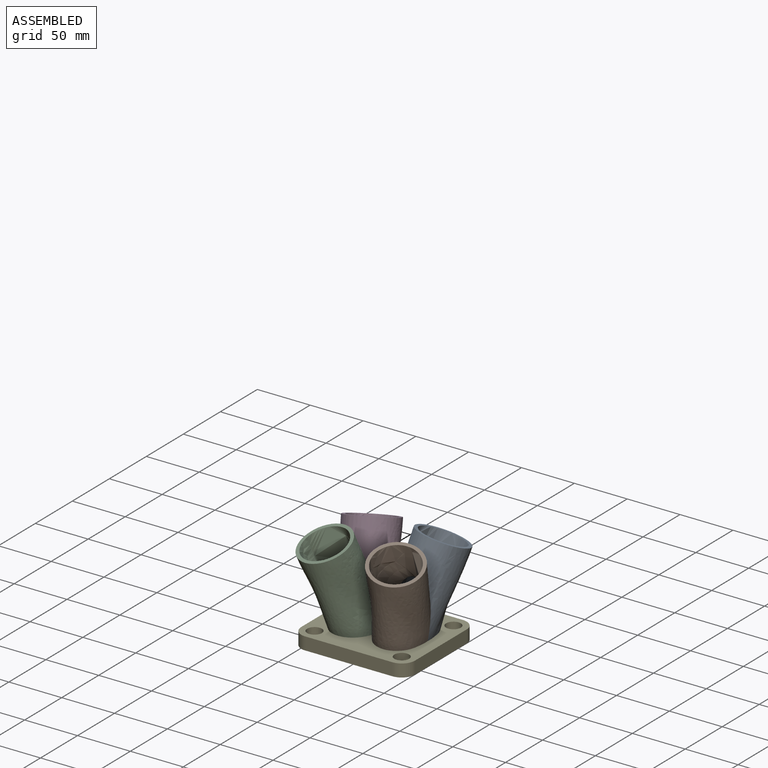
[diagram: assembled view]
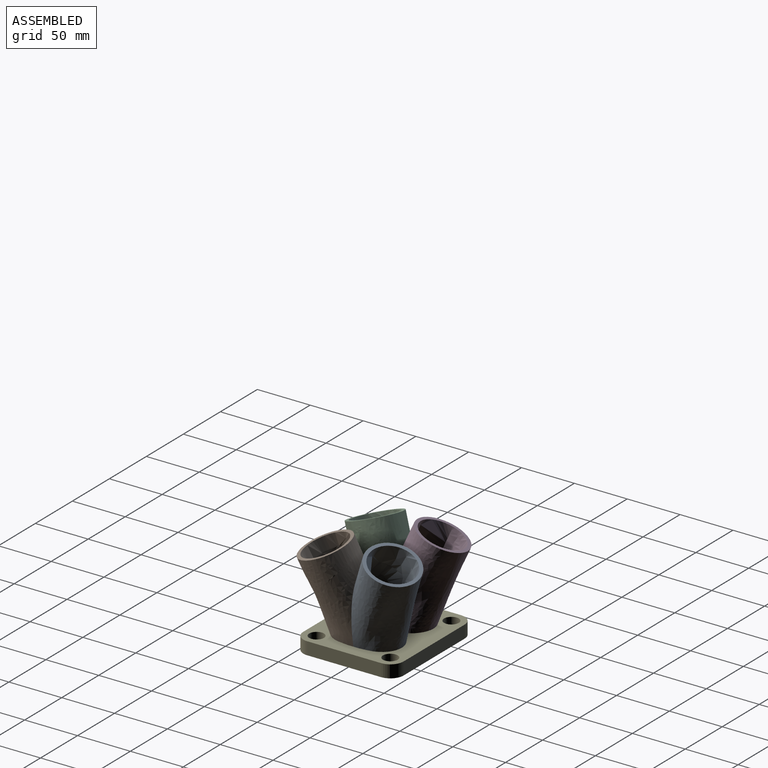
[diagram: assembled view, second angle]
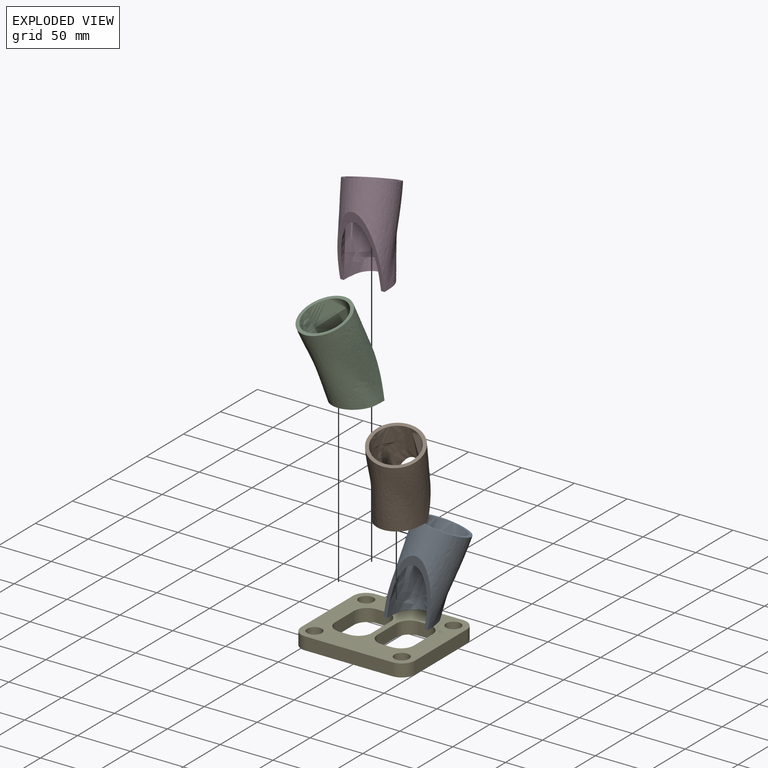
[diagram: exploded view]
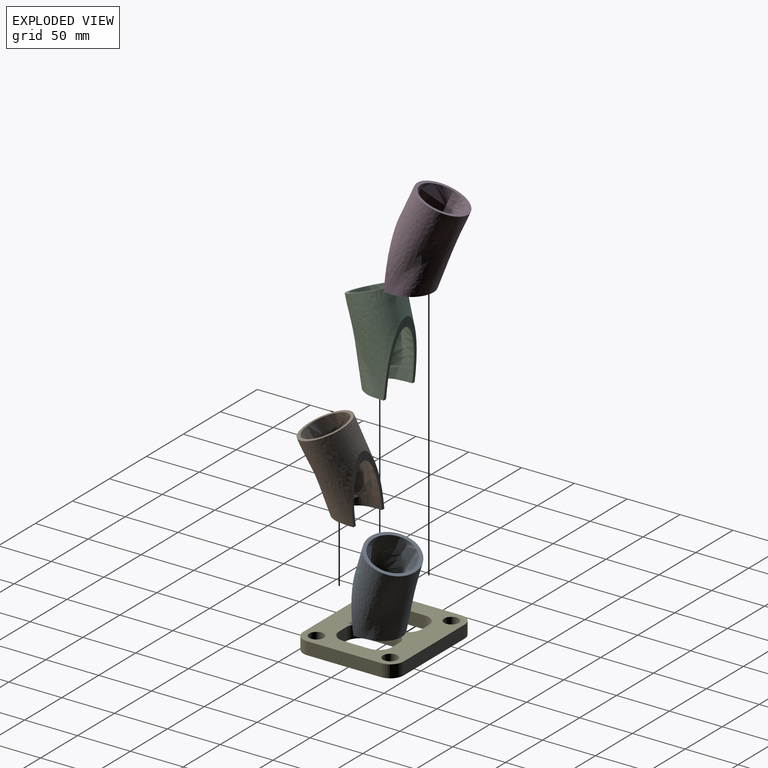
[diagram: exploded view, second angle]
ASSEMBLY  parts=5 mates=4
PART A: 5 faces, bbox 110.5x100.8x143.8 mm
  f0: bspline ~95.95x52.9mm, area 9348.7mm2, adj f2,f3,f4
  f1: offset ~92.33x68.95mm, area 9156.1mm2, adj f2,f3,f4
  f2: plane 86.27x86.27mm, normal (0,0,1), area 452.4mm2, adj f0,f1
  f3: plane 108.73x89.26mm, normal (0,-0.94,-0.34), area 564.4mm2, adj f0,f1,f4
  f4: plane 41.3x31.19mm, normal (0.17,0.34,-0.93), area 266.4mm2, adj f0,f1,f3
PART B: 5 faces, bbox 110.5x100.8x143.8 mm
  f0: plane 108.73x89.26mm, normal (0,-0.94,-0.34), area 564.7mm2, adj f2,f3,f4
  f1: plane 86.27x86.27mm, normal (0,0,1), area 452.3mm2, adj f2,f3
  f2: bspline ~95.95x52.9mm, area 9348.8mm2, adj f0,f1,f4
  f3: offset ~92.38x68.95mm, area 9147.1mm2, adj f0,f1,f4
  f4: plane 41.3x31.19mm, normal (-0.17,0.34,-0.93), area 266.5mm2, adj f0,f2,f3
PART C: same geometry as A
PART D: same geometry as B
PART E: 30 faces, bbox 107.6x94.9x12 mm
  f0: plane 69.9x12mm, normal (-1,0,0), area 838.8mm2, adj f1,f27,f28,f29
  f1: cylinder r=12.5mm len=12.5mm, axis (0,0,-1), area 235.6mm2, adj f0,f2,f28,f29
  f2: plane 82.6x12mm, normal (0,-1,0), area 991.2mm2, adj f1,f3,f28,f29
  f3: cylinder r=12.5mm len=12.5mm, axis (0,0,-1), area 235.6mm2, adj f2,f4,f28,f29
  f4: plane 69.9x12mm, normal (1,0,0), area 838.8mm2, adj f3,f5,f28,f29
  f5: cylinder r=12.5mm len=12.5mm, axis (0,0,-1), area 235.6mm2, adj f4,f6,f28,f29
  f6: plane 82.6x12mm, normal (0,1,0), area 991.2mm2, adj f5,f27,f28,f29
  f7: plane 12x9.5mm, normal (0,-1,0), area 114mm2, adj f8,f25,f28,f29
  f8: cylinder r=12.5mm len=12.5mm, axis (0,0,-1), area 235.6mm2, adj f7,f9,f28,f29
  f9: plane 25.25x12mm, normal (-1,0,0), area 303mm2, adj f8,f10,f28,f29
  f10: cylinder r=12.5mm len=12.5mm, axis (0,0,-1), area 235.6mm2, adj f9,f11,f28,f29
  f11: plane 12x9.5mm, normal (0,1,0), area 114mm2, adj f10,f12,f28,f29
  f12: cylinder r=12.5mm len=12.5mm, axis (0,0,-1), area 235.6mm2, adj f11,f13,f28,f29
  f13: plane 25.25x12mm, normal (1,0,0), area 303mm2, adj f12,f25,f28,f29
  f14: cylinder r=12.5mm len=12.5mm, axis (0,0,-1), area 235.6mm2, adj f15,f26,f28,f29
  f15: plane 25.25x12mm, normal (-1,0,0), area 303mm2, adj f14,f16,f28,f29
  f16: cylinder r=12.5mm len=12.5mm, axis (0,0,-1), area 235.6mm2, adj f15,f17,f28,f29
  f17: plane 12x9.5mm, normal (0,1,0), area 114mm2, adj f16,f18,f28,f29
  f18: cylinder r=12.5mm len=12.5mm, axis (0,0,-1), area 235.6mm2, adj f17,f19,f28,f29
  f19: plane 25.25x12mm, normal (1,0,0), area 303mm2, adj f18,f20,f28,f29
  f20: cylinder r=12.5mm len=12.5mm, axis (0,0,-1), area 235.6mm2, adj f19,f26,f28,f29
  f21: cylinder r=7mm len=14mm, axis (0,0,-1), area 527.8mm2, adj f28,f29
  f22: cylinder r=7mm len=14mm, axis (0,0,-1), area 527.8mm2, adj f28,f29
  f23: cylinder r=7mm len=14mm, axis (0,0,-1), area 527.8mm2, adj f28,f29
  f24: cylinder r=7mm len=14mm, axis (0,0,-1), area 527.8mm2, adj f28,f29
  f25: cylinder r=12.5mm len=12.5mm, axis (0,0,-1), area 235.6mm2, adj f7,f13,f28,f29
  f26: plane 12x9.5mm, normal (0,-1,0), area 114mm2, adj f14,f20,f28,f29
  f27: cylinder r=12.5mm len=12.5mm, axis (0,0,-1), area 235.6mm2, adj f0,f6,f28,f29
  f28: plane 107.6x94.9mm, normal (0,0,1), area 6262.4mm2, adj f0,f1,f2,f3,f4,f5,f6,f7
  f29: plane 107.6x94.9mm, normal (0,0,-1), area 6262.4mm2, adj f0,f1,f2,f3,f4,f5,f6,f7
PLACE A rot(axis=(-0.89,0.44,0.08),22.3deg) t=(17.81,5.09,-2.5)mm
PLACE B rot(axis=(0.09,-0.17,0.98),178.3deg) t=(17.81,-5.09,-2.5)mm
PLACE C rot(axis=(0.09,0.17,-0.98),178.3deg) t=(-17.81,-5.09,-2.5)mm
PLACE D rot(axis=(-0.89,-0.44,-0.08),22.3deg) t=(-17.81,5.09,-2.5)mm
PLACE E at identity
MATE fastened A.f4 <-> E.f28  axis (0,0,-1) through (2.75,0,12)mm
MATE fastened B.f4 <-> E.f28  axis (0,0,-1) through (2.75,0,12)mm
MATE fastened D.f4 <-> E.f28  axis (0,0,-1) through (-2.75,0,12)mm
MATE fastened C.f4 <-> E.f28  axis (0,0,-1) through (-2.75,0,12)mm
